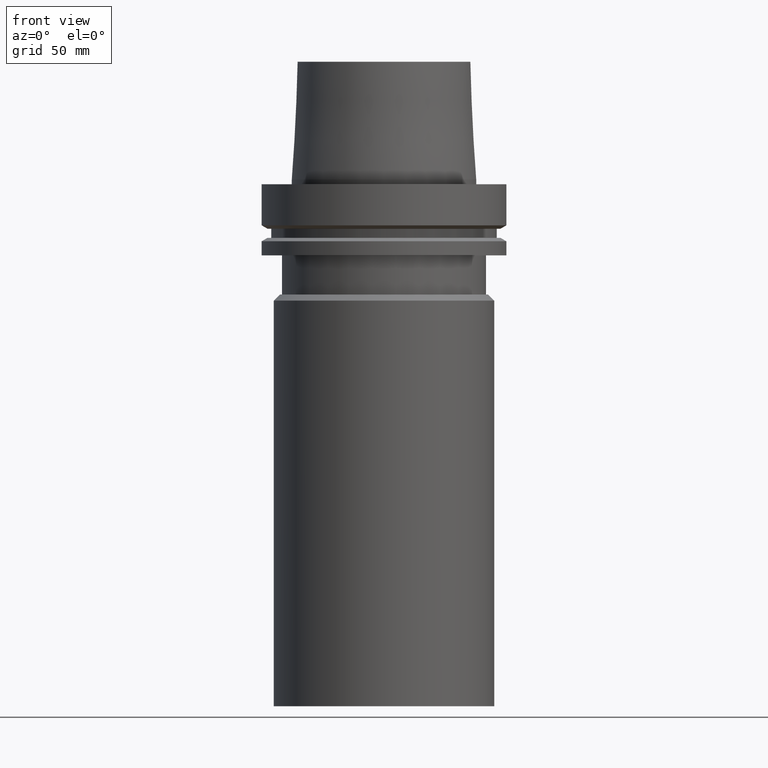
[diagram: clean part render]
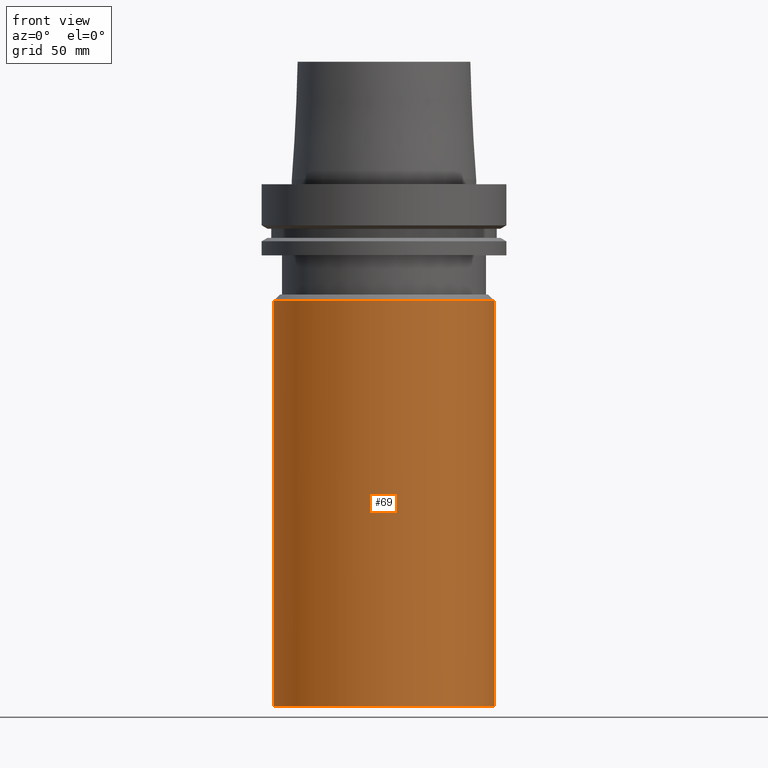
[diagram: same view with one face highlighted and labeled with its STEP entity id]
A machine part, front view. The second image highlights one B-rep face of the part: STEP entity #69.
In plain terms, the highlighted cylindrical surface (bore or boss wall) has radius 45 mm, axis along (0, 0, -1).
Its self-contained STEP definition (entity closure, byte-faithful):
#69=ADVANCED_FACE('Unnamed[1]',(#177,#178),#179,.T.);
#85=EDGE_CURVE('Unnamed[1]',#203,#203,#204,.T.);
#90=EDGE_CURVE('Unnamed[1]',#210,#210,#211,.T.);
#177=FACE_BOUND('',#322,.T.);
#178=FACE_BOUND('',#323,.T.);
#179=CYLINDRICAL_SURFACE('',#324,45.0);
#203=VERTEX_POINT('',#354);
#204=CIRCLE('',#355,45.0);
#210=VERTEX_POINT('',#363);
#211=CIRCLE('',#364,45.0);
#322=EDGE_LOOP('',(#486));
#323=EDGE_LOOP('',(#487));
#324=AXIS2_PLACEMENT_3D('',#488,#489,#490);
#354=CARTESIAN_POINT('',(1.30424884109193E-014,45.0,-213.0));
#355=AXIS2_PLACEMENT_3D('',#517,#518,#519);
#363=CARTESIAN_POINT('',(2.90853614797497E-015,45.0,-47.5000000000001));
#364=AXIS2_PLACEMENT_3D('',#525,#526,#527);
#486=ORIENTED_EDGE('',*,*,#85,.F.);
#487=ORIENTED_EDGE('',*,*,#90,.T.);
#488=CARTESIAN_POINT('',(7.97551227944714E-015,1.59510245588943E-014,-130.25));
#489=DIRECTION('',(6.12323399573677E-017,1.22464679914735E-016,-1.0));
#490=DIRECTION('',(-1.23259516440783E-032,1.0,1.22464679914735E-016));
#517=CARTESIAN_POINT('',(1.30424884109193E-014,2.60849768218386E-014,-213.0));
#518=DIRECTION('',(6.12323399573677E-017,1.22464679914735E-016,-1.0));
#519=DIRECTION('',(-1.23259516440783E-032,1.0,1.22464679914735E-016));
#525=CARTESIAN_POINT('',(2.90853614797497E-015,5.81707229594993E-015,-47.5000000000001));
#526=DIRECTION('',(6.12323399573677E-017,1.22464679914735E-016,-1.0));
#527=DIRECTION('',(-1.23259516440783E-032,1.0,1.22464679914735E-016));